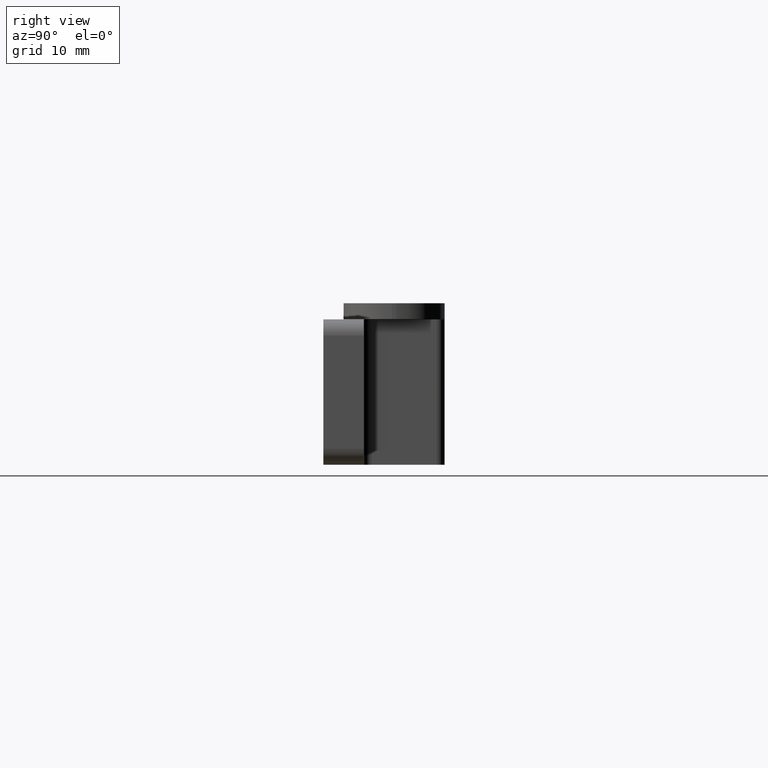
[diagram: clean part render]
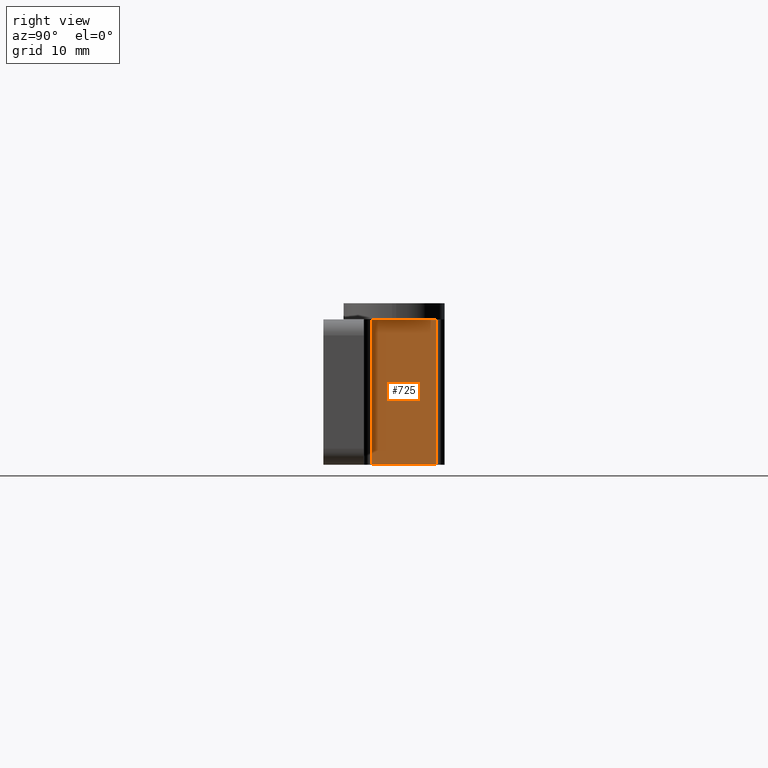
[diagram: same view with one face highlighted and labeled with its STEP entity id]
A machine part, right view. The second image highlights one B-rep face of the part: STEP entity #725.
In plain terms, the highlighted planar face has unit normal (1, 0, 0).
Its self-contained STEP definition (entity closure, byte-faithful):
#47=PLANE('',#788);
#73=FACE_OUTER_BOUND('',#115,.T.);
#115=EDGE_LOOP('',(#567,#568,#569,#570));
#158=LINE('',#1092,#222);
#172=LINE('',#1132,#236);
#185=LINE('',#1173,#249);
#186=LINE('',#1175,#250);
#222=VECTOR('',#859,8.);
#236=VECTOR('',#891,8.);
#249=VECTOR('',#936,18.);
#250=VECTOR('',#939,18.);
#328=VERTEX_POINT('',#1089);
#329=VERTEX_POINT('',#1091);
#345=VERTEX_POINT('',#1129);
#346=VERTEX_POINT('',#1131);
#399=EDGE_CURVE('',#329,#328,#158,.T.);
#419=EDGE_CURVE('',#345,#346,#172,.T.);
#441=EDGE_CURVE('',#329,#345,#185,.T.);
#442=EDGE_CURVE('',#346,#328,#186,.T.);
#567=ORIENTED_EDGE('',*,*,#441,.F.);
#568=ORIENTED_EDGE('',*,*,#399,.T.);
#569=ORIENTED_EDGE('',*,*,#442,.F.);
#570=ORIENTED_EDGE('',*,*,#419,.F.);
#725=ADVANCED_FACE('',(#73),#47,.T.);
#788=AXIS2_PLACEMENT_3D('',#1174,#937,#938);
#859=DIRECTION('',(0.,1.,0.));
#891=DIRECTION('',(0.,1.,0.));
#936=DIRECTION('',(0.,0.,1.));
#937=DIRECTION('center_axis',(1.,0.,0.));
#938=DIRECTION('ref_axis',(0.,1.,0.));
#939=DIRECTION('',(0.,0.,-1.));
#1089=CARTESIAN_POINT('',(73.,14.,0.));
#1091=CARTESIAN_POINT('',(73.,6.,0.));
#1092=CARTESIAN_POINT('',(73.,5.,0.));
#1129=CARTESIAN_POINT('',(73.,6.,18.));
#1131=CARTESIAN_POINT('',(73.,14.,18.));
#1132=CARTESIAN_POINT('',(73.,5.,18.));
#1173=CARTESIAN_POINT('',(73.,6.,0.));
#1174=CARTESIAN_POINT('Origin',(73.,5.,0.));
#1175=CARTESIAN_POINT('',(73.,14.,0.));